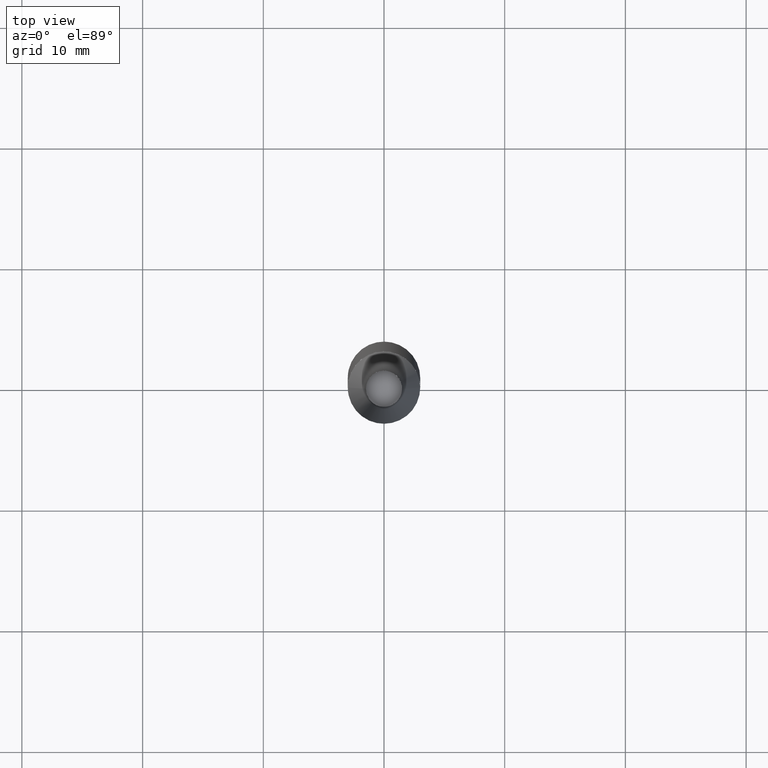
[diagram: clean part render]
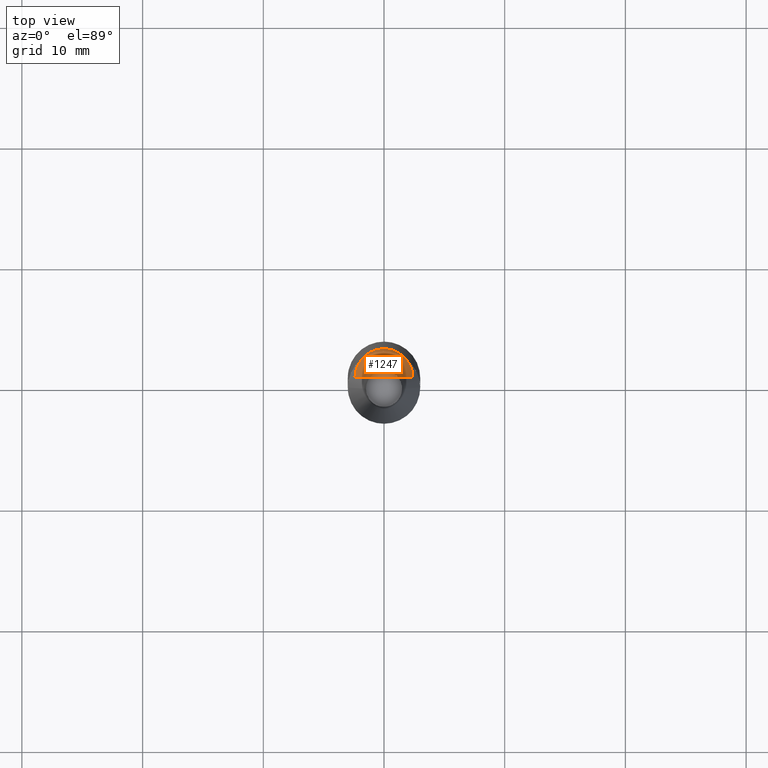
[diagram: same view with one face highlighted and labeled with its STEP entity id]
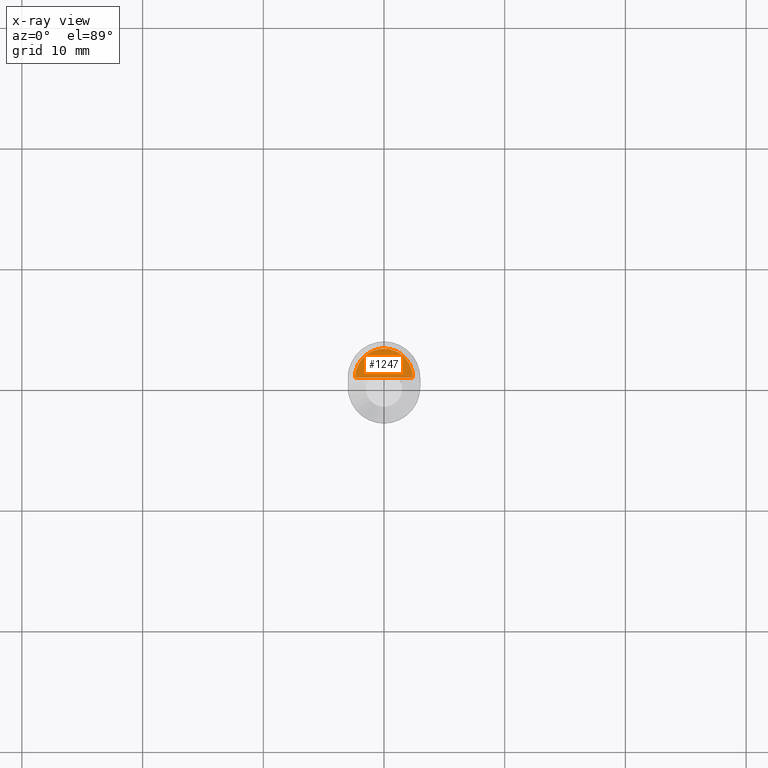
[diagram: x-ray of the same camera — body ghosted, the highlighted face saturated]
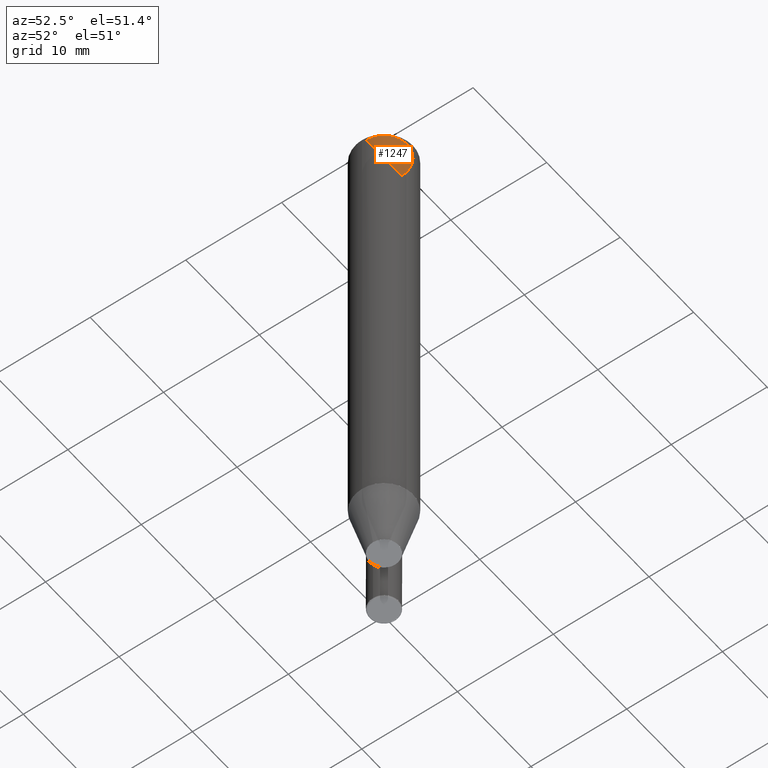
[diagram: same view with one face highlighted and labeled with its STEP entity id]
A machine part, top view. The second image highlights one B-rep face of the part: STEP entity #1247.
The next image is the same camera in x-ray: the body ghosted, the highlighted face saturated — about 0% of this face is hidden behind the body in this view.
A second angle (auxiliary view) of the same face is appended — the face is thin or edge-on in the first view.
In plain terms, the highlighted face is a freeform B-spline surface patch.
Its self-contained STEP definition (entity closure, byte-faithful):
#984=CARTESIAN_POINT('',(2.4,0.0,46.901923788647));
#985=CARTESIAN_POINT('',(2.4,2.4,46.901923788647));
#986=CARTESIAN_POINT('',(0.0,2.4,46.901923788647));
#987=CARTESIAN_POINT('',(-2.4,2.4,46.901923788647));
#988=CARTESIAN_POINT('',(-2.4,0.0,46.901923788647));
#989=CARTESIAN_POINT('',(0.0,0.0,46.901923788647));
#1232=(
BOUNDED_SURFACE()
B_SPLINE_SURFACE(1,2,(
(#984,#985,#986,#987,#988),
(#989,#989,#989,#989,#989)
), .UNSPECIFIED.,.F.,.F.,.F.)
B_SPLINE_SURFACE_WITH_KNOTS((2,2),(3,2,3),(
0.0,1.0),(
0.0,0.5,1.0), .UNSPECIFIED.)
GEOMETRIC_REPRESENTATION_ITEM()
RATIONAL_B_SPLINE_SURFACE(((1.0,0.707106781187,1.0,0.707106781187,1.0),
(1.0,0.707106781187,1.0,0.707106781187,1.0)
))
REPRESENTATION_ITEM('')
SURFACE()
);
#1233=(
BOUNDED_CURVE()
B_SPLINE_CURVE(1,(#989,#984),.UNSPECIFIED.,.F.,.F.)
B_SPLINE_CURVE_WITH_KNOTS((2,2),
(0.0,1.0),.UNSPECIFIED.)
CURVE()
GEOMETRIC_REPRESENTATION_ITEM()
RATIONAL_B_SPLINE_CURVE((1.0,1.0))
REPRESENTATION_ITEM('')
);
#1234=(
BOUNDED_CURVE()
B_SPLINE_CURVE(2,(#984,#985,#986,#987,#988),.UNSPECIFIED.,.F.,.F.)
B_SPLINE_CURVE_WITH_KNOTS((3,2,3),
(0.0,0.5,1.0),.UNSPECIFIED.)
CURVE()
GEOMETRIC_REPRESENTATION_ITEM()
RATIONAL_B_SPLINE_CURVE((1.0,0.707106781187,1.0,0.707106781187,1.0))
REPRESENTATION_ITEM('')
);
#1235=(
BOUNDED_CURVE()
B_SPLINE_CURVE(1,(#988,#989),.UNSPECIFIED.,.F.,.F.)
B_SPLINE_CURVE_WITH_KNOTS((2,2),
(0.0,1.0),.UNSPECIFIED.)
CURVE()
GEOMETRIC_REPRESENTATION_ITEM()
RATIONAL_B_SPLINE_CURVE((1.0,1.0))
REPRESENTATION_ITEM('')
);
#1236=VERTEX_POINT('',#984);
#1237=VERTEX_POINT('',#988);
#1238=VERTEX_POINT('',#989);
#1239=EDGE_CURVE('',#1238,#1236,#1233,.T.);
#1240=EDGE_CURVE('',#1236,#1237,#1234,.T.);
#1241=EDGE_CURVE('',#1237,#1238,#1235,.T.);
#1242=ORIENTED_EDGE('',*,*,#1239,.T.);
#1243=ORIENTED_EDGE('',*,*,#1240,.T.);
#1244=ORIENTED_EDGE('',*,*,#1241,.T.);
#1245=EDGE_LOOP('',(#1242,#1243,#1244));
#1246=FACE_OUTER_BOUND('',#1245,.T.);
#1247=ADVANCED_FACE('',(#1246),#1232,.T.);